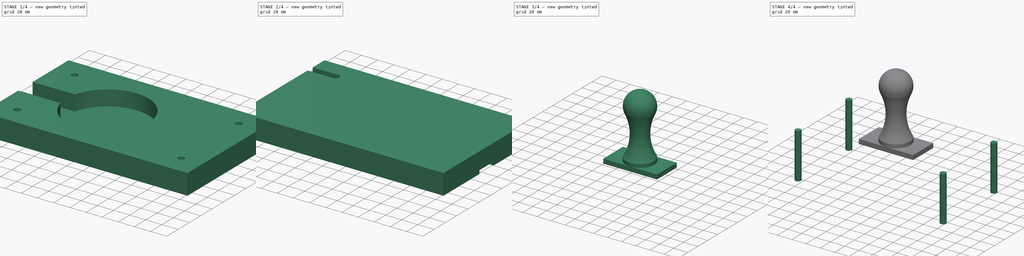
[diagram: build sequence overview — one tinted view per stage of 4, left to right]
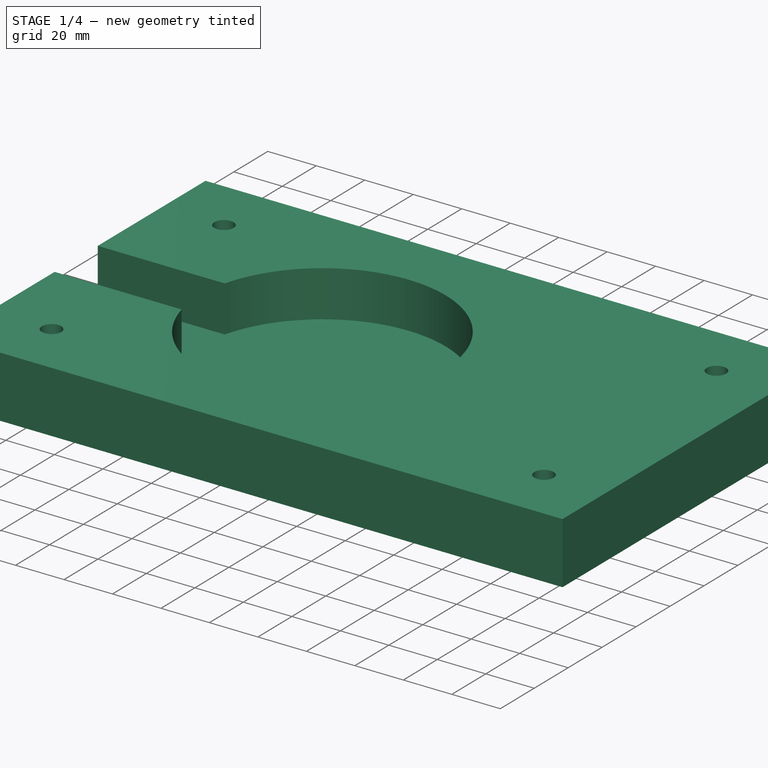
[diagram: stage 1 of 4 — iso view after this stage's code; geometry added in this stage tinted green]
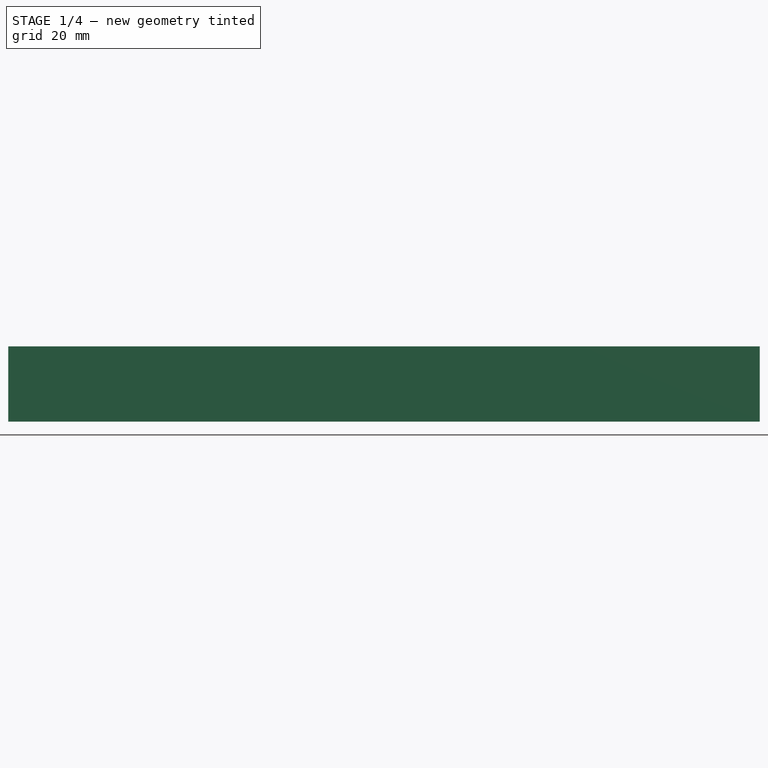
[diagram: stage 1 of 4 — front view after this stage's code; geometry added in this stage tinted green]
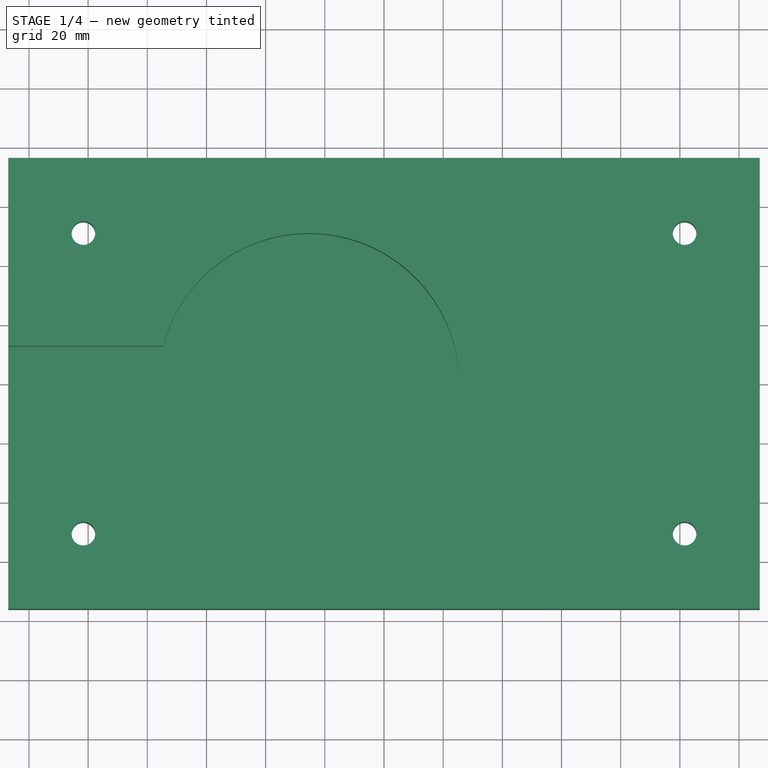
[diagram: stage 1 of 4 — top view after this stage's code; geometry added in this stage tinted green]
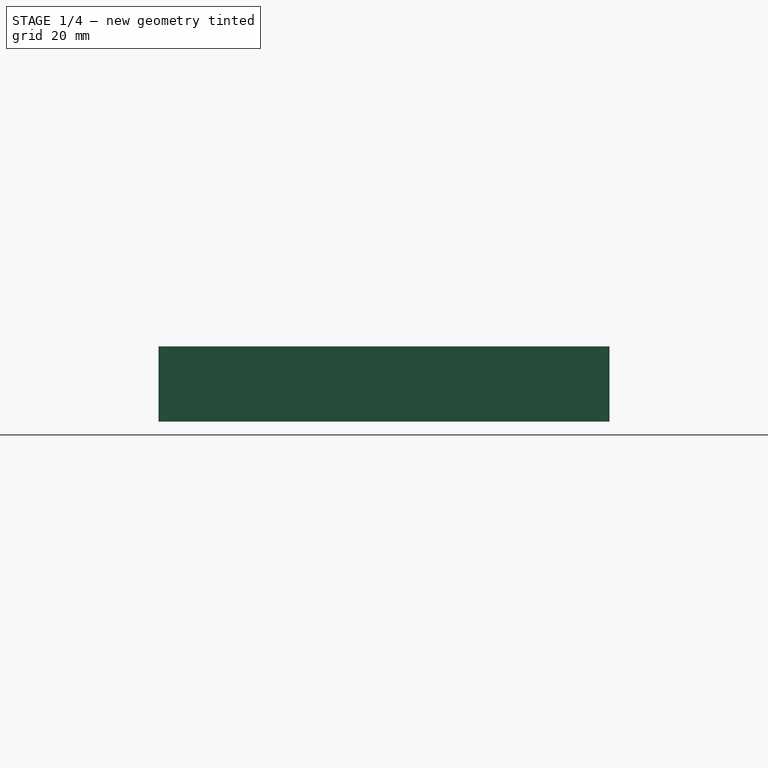
[diagram: stage 1 of 4 — right view after this stage's code; geometry added in this stage tinted green]
FCSTD DOCUMENT  (FreeCAD 0.17R13541 (Git))
Label: 贝尔的金属探测器 带图纸
License: All rights reserved
LicenseURL: http://en.wikipedia.org/wiki/All_rights_reserved
objects: TechDraw::DrawViewDimension×11, Sketcher::SketchObject×8, PartDesign::Pocket×4, Part::Cylinder×4, PartDesign::Mirrored×4, PartDesign::Pad×3, PartDesign::Body×3, TechDraw::DrawProjGroupItem×3, PartDesign::MultiTransform×2, PartDesign::ShapeBinder×2, PartDesign::Revolution×1, TechDraw::DrawSVGTemplate×1, TechDraw::DrawProjGroup×1, TechDraw::DrawViewPart×1, TechDraw::DrawPage×1
note: 39 computed .brp shape members not serialized (recipe doc carries the construction recipe); baked Part::Feature solids carry a one-line shape summary decoded from their .brp

FEATURE [Sketcher::SketchObject] Sketch
  MapMode = 5
  Support = -> [XY_Plane]
  sketch-geometry (4):
    g0: LineSegment StartX=127 StartY=76.2 StartZ=0 EndX=-127 EndY=76.2 EndZ=0
    g1: LineSegment StartX=-127 StartY=76.2 StartZ=0 EndX=-127 EndY=-76.2 EndZ=0
    g2: LineSegment StartX=-127 StartY=-76.2 StartZ=0 EndX=127 EndY=-76.2 EndZ=0
    g3: LineSegment StartX=127 StartY=-76.2 StartZ=0 EndX=127 EndY=76.2 EndZ=0
  constraints (11):
    c: Coincident(g0,g1)
    c: Coincident(g1,g2)
    c: Coincident(g2,g3)
    c: Coincident(g3,g0)
    c: Horizontal(g0)
    c: Horizontal(g2)
    c: Vertical(g1)
    c: Vertical(g3)
    c: DistanceX(g0,g0) = 254
    c: DistanceY(g2,g0) = 152.4
    c: Symmetric(g0,g1,g-1)
FEATURE [PartDesign::Pad] Pad  label="上基座"
  Length = 25.4
  Length2 = 100
  Profile = -> Sketch
  Type = 0
FEATURE [Sketcher::SketchObject] Sketch001
  MapMode = 5
  Placement = pos=(0,0,25.4) rot=(0,0,1;0rad)
  Support = -> [Pad]
  sketch-geometry (1):
    g0: Circle CenterX=-101.6 CenterY=50.8 CenterZ=0 NormalX=0 NormalY=0 NormalZ=1 AngleXU=0 Radius=4
  constraints (3):
    c: DistanceX(g0) = -101.6
    c: DistanceY(g0) = 50.8
    c: Radius(g0) = 4
FEATURE [PartDesign::Pocket] Pocket  label="销钉孔"
  BaseFeature = -> Pad
  Length = 5
  Length2 = 100
  Profile = -> Sketch001
  Type = 1
FEATURE [PartDesign::Mirrored] Mirrored
  MirrorPlane = -> YZ_Plane
FEATURE [PartDesign::Mirrored] Mirrored001
  MirrorPlane = -> XZ_Plane
FEATURE [PartDesign::MultiTransform] MultiTransform  label="两次镜像的销钉孔"
  BaseFeature = -> Pocket
  Originals = -> [Pocket]
  Transformations = -> [Mirrored,Mirrored001]
FEATURE [Sketcher::SketchObject] Sketch002
  ExternalGeometry = -> [MultiTransform]
  MapMode = 5
  Placement = pos=(0,0,25.4) rot=(0,0,1;0rad)
  Support = -> [MultiTransform]
  sketch-geometry (4):
    g0: LineSegment StartX=-127 StartY=-12.7 StartZ=0 EndX=-74.5869 EndY=-12.7 EndZ=0
    g1: LineSegment StartX=-74.5869 StartY=12.7 StartZ=0 EndX=-127 EndY=12.7 EndZ=0
    g2: LineSegment StartX=-127 StartY=12.7 StartZ=0 EndX=-127 EndY=-12.7 EndZ=0
    g3: ArcOfCircle CenterX=-25.4 CenterY=0 CenterZ=0 NormalX=0 NormalY=0 NormalZ=1 AngleXU=0 Radius=50.8 StartAngle=3.39427 EndAngle=9.1721
  constraints (13):
    c: Coincident(g1,g2)
    c: Coincident(g2,g0)
    c: Horizontal(g0)
    c: Horizontal(g1)
    c: Vertical(g2)
    c: PointOnObject(g0,g-3)
    c: PointOnObject(g3,g-1)  '凹坑中心在x轴上'
    c: Symmetric(g1,g0,g-1)  '沟槽中心对称'
    c: DistanceY(g0,g1) = 25.4  '沟槽宽度'
    c: Radius(g3) = 50.8  '凹坑半径'
    c: DistanceX(g3,g-1) = 25.4  '凹坑位置'
    c: Coincident(g3,g0)
    c: Coincident(g3,g1)
FEATURE [PartDesign::Pocket] Pocket001  label="深沟槽和凹坑"
  BaseFeature = -> MultiTransform
  Length = 19.05
  Length2 = 100
  Profile = -> Sketch002
  Type = 0
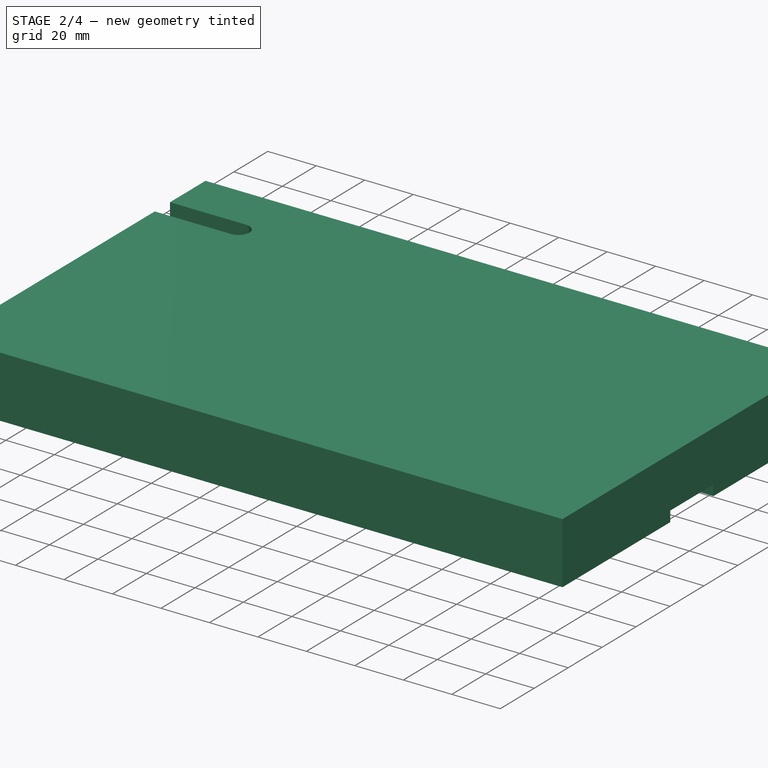
[diagram: stage 2 of 4 — iso view after this stage's code; geometry added in this stage tinted green]
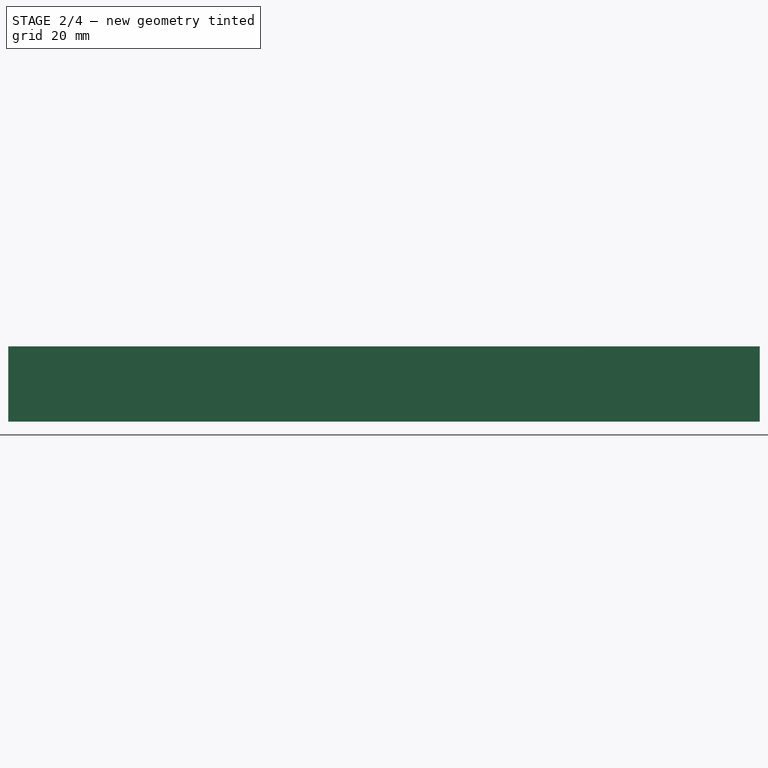
[diagram: stage 2 of 4 — front view after this stage's code; geometry added in this stage tinted green]
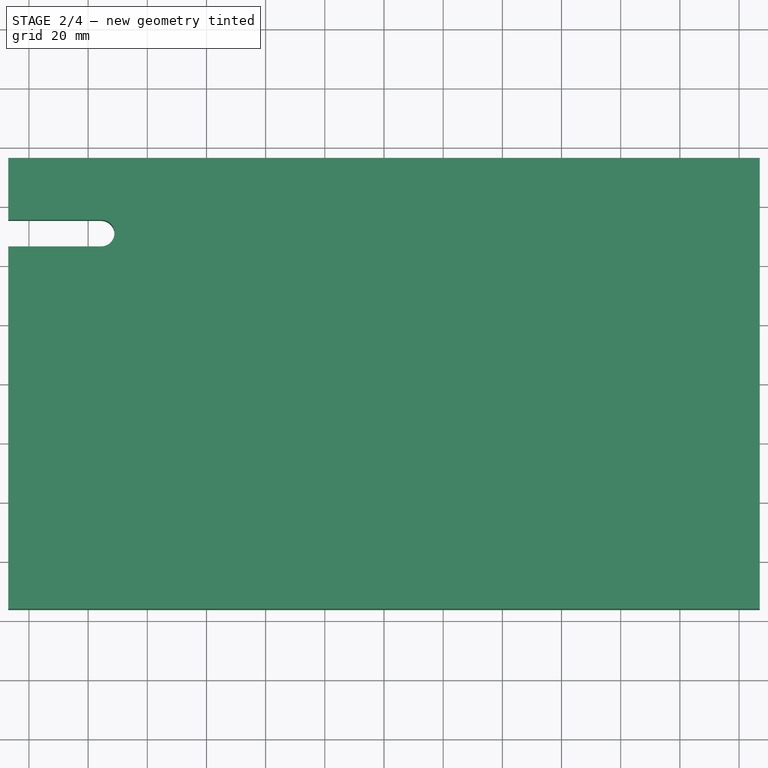
[diagram: stage 2 of 4 — top view after this stage's code; geometry added in this stage tinted green]
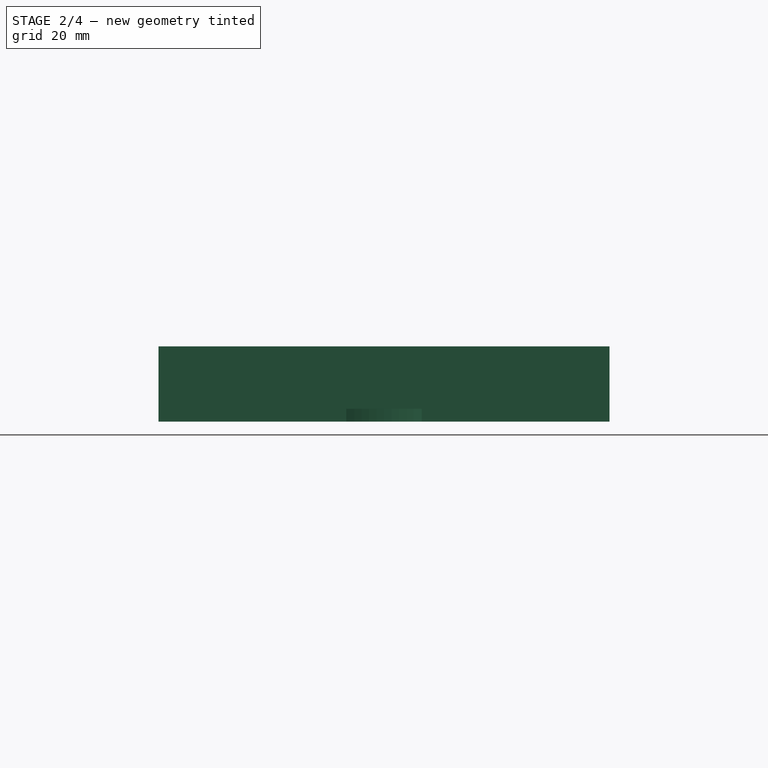
[diagram: stage 2 of 4 — right view after this stage's code; geometry added in this stage tinted green]
FEATURE [PartDesign::Body] Body  label="下底座"
  Group = -> [Sketch,Pad,Sketch001,Pocket,MultiTransform,Mirrored,Mirrored001,Sketch002,Pocket001]
  Origin = -> Origin
  Tip = -> Pocket001
FEATURE [PartDesign::ShapeBinder] ShapeBinder  label="引用的下底座的顶面"
  Support = -> [Pocket001]
FEATURE [Sketcher::SketchObject] Sketch003
  ExternalGeometry = -> [ShapeBinder]
  MapMode = 5
  Placement = pos=(0,0,25.4) rot=(0,0,1;0rad)
  Support = -> [ShapeBinder]
  sketch-geometry (4):
    g0: LineSegment StartX=-127 StartY=76.2 StartZ=0 EndX=127 EndY=76.2 EndZ=0
    g1: LineSegment StartX=127 StartY=76.2 StartZ=0 EndX=127 EndY=-76.2 EndZ=0
    g2: LineSegment StartX=127 StartY=-76.2 StartZ=0 EndX=-127 EndY=-76.2 EndZ=0
    g3: LineSegment StartX=-127 StartY=-76.2 StartZ=0 EndX=-127 EndY=76.2 EndZ=0
  constraints (10):
    c: Coincident(g0,g1)
    c: Coincident(g1,g2)
    c: Coincident(g2,g3)
    c: Coincident(g3,g0)
    c: Horizontal(g0)
    c: Horizontal(g2)
    c: Vertical(g1)
    c: Vertical(g3)
    c: Coincident(g0,g-3)
    c: Coincident(g1,g-4)
FEATURE [PartDesign::Pad] Pad001  label="下基座"
  Length = 25.4
  Length2 = 100
  Profile = -> Sketch003
  Type = 0
FEATURE [Sketcher::SketchObject] Sketch004
  ExternalGeometry = -> [ShapeBinder]
  MapMode = 5
  Placement = pos=(0,0,25.4) rot=(0,0,1;0rad)
  Support = -> [ShapeBinder]
  sketch-geometry (5):
    g0: LineSegment [constr] StartX=-101.6 StartY=50.8 StartZ=0 EndX=-95.6 EndY=50.8 EndZ=0
    g1: ArcOfCircle CenterX=-95.6 CenterY=50.8 CenterZ=0 NormalX=0 NormalY=0 NormalZ=1 AngleXU=0 Radius=4.5 StartAngle=4.71239 EndAngle=7.85398
    g2: LineSegment StartX=-95.6 StartY=55.3 StartZ=0 EndX=-127 EndY=55.3 EndZ=0
    g3: LineSegment StartX=-127 StartY=55.3 StartZ=0 EndX=-127 EndY=46.3 EndZ=0
    g4: LineSegment StartX=-127 StartY=46.3 StartZ=0 EndX=-95.6 EndY=46.3 EndZ=0
  constraints (13):
    c: Coincident(g0,g-3)
    c: Horizontal(g0)
    c: Coincident(g1,g0)
    c: PointOnObject(g2,g-4)
    c: Horizontal(g2)
    c: Coincident(g3,g2)
    c: Coincident(g4,g3)
    c: Horizontal(g4)
    c: Tangent(g4,g1) = -1.5708
    c: Tangent(g2,g1) = -1.5708
    c: DistanceX(g0,g0) = 6
    c: Radius(g1) = 4.5
    c: Vertical(g3)
FEATURE [PartDesign::Pocket] Pocket002  label="滑槽"
  BaseFeature = -> Pad001
  Length = 5
  Length2 = 100
  Profile = -> Sketch004
  Reversed = true
  Type = 1
FEATURE [Sketcher::SketchObject] Sketch005
  ExternalGeometry = -> [ShapeBinder]
  MapMode = 5
  Placement = pos=(0,0,25.4) rot=(0,0,1;0rad)
  Support = -> [ShapeBinder]
  sketch-geometry (5):
    g0: LineSegment [constr] StartX=-74.5869 StartY=12.7 StartZ=0 EndX=-74.5869 EndY=-12.7 EndZ=0
    g1: LineSegment StartX=127 StartY=-12.7 StartZ=0 EndX=74.5869 EndY=-12.7 EndZ=0
    g2: LineSegment StartX=74.5869 StartY=12.7 StartZ=0 EndX=127 EndY=12.7 EndZ=0
    g3: LineSegment StartX=127 StartY=12.7 StartZ=0 EndX=127 EndY=-12.7 EndZ=0
    g4: ArcOfCircle CenterX=25.4 CenterY=0 CenterZ=0 NormalX=0 NormalY=0 NormalZ=1 AngleXU=0 Radius=50.8 StartAngle=0.25268 EndAngle=6.03051
  constraints (15):
    c: Coincident(g0,g-3)
    c: Coincident(g0,g-3)
    c: Coincident(g2,g3)
    c: Coincident(g3,g1)
    c: Horizontal(g1)
    c: Horizontal(g2)
    c: Vertical(g3)
    c: PointOnObject(g1,g-4)
    c: PointOnObject(g4,g-1)
    c: Symmetric(g2,g1,g-1)  '沟槽沿x轴对称'
    c: Equal(g3,g0)  '沟槽宽度相等'
    c: Equal(g4,g-3)  '两圆大小相等'
    c: Coincident(g4,g2)
    c: Coincident(g4,g1)
    c: Symmetric(g4,g-3,g-1)  '两圆镜像'
FEATURE [PartDesign::Pocket] Pocket003  label="浅沟槽和凹坑"
  BaseFeature = -> Pocket002
  Length = 4.318
  Length2 = 100
  Profile = -> Sketch005
  Reversed = true
  Type = 0
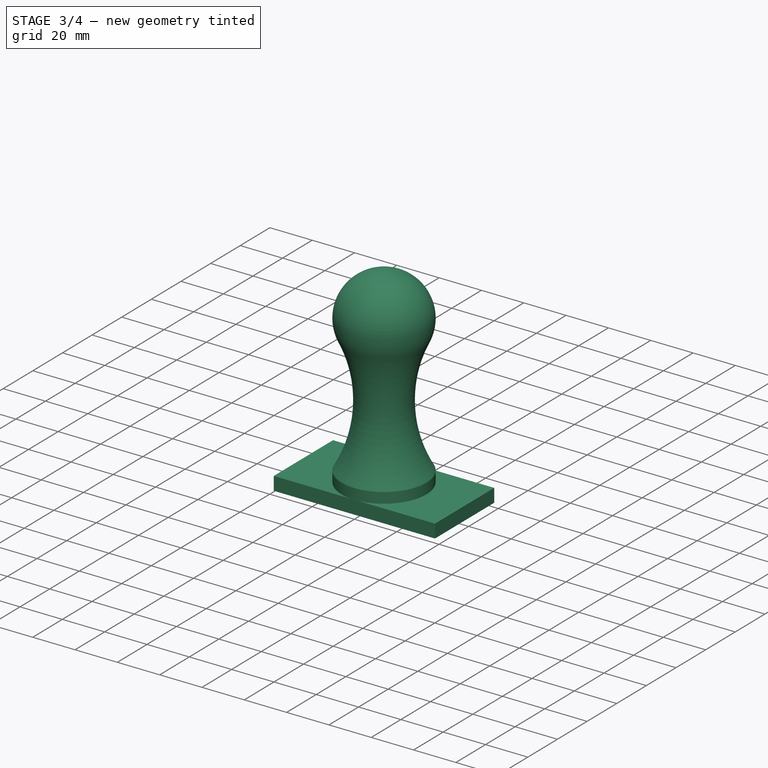
[diagram: stage 3 of 4 — iso view after this stage's code; geometry added in this stage tinted green]
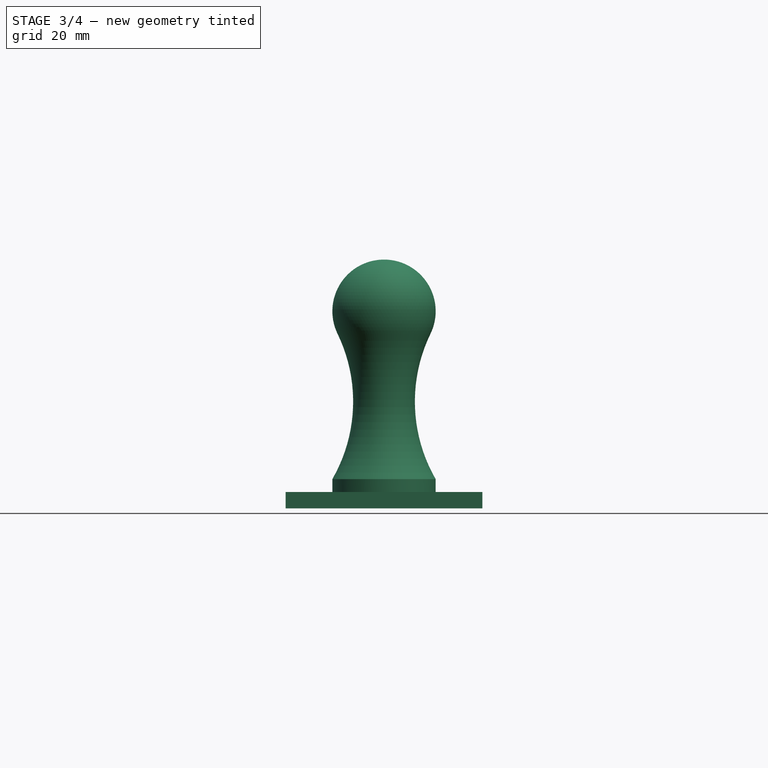
[diagram: stage 3 of 4 — front view after this stage's code; geometry added in this stage tinted green]
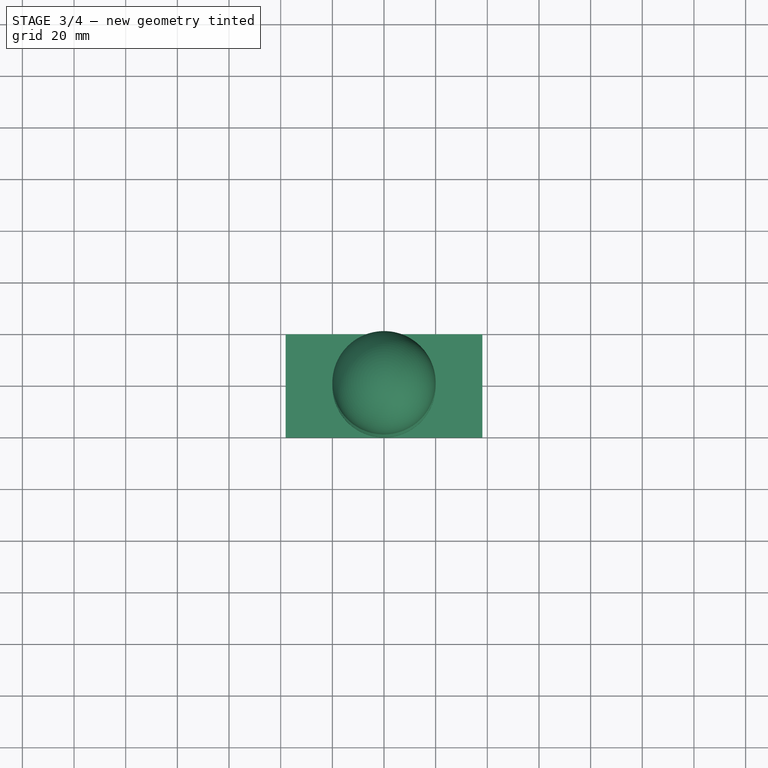
[diagram: stage 3 of 4 — top view after this stage's code; geometry added in this stage tinted green]
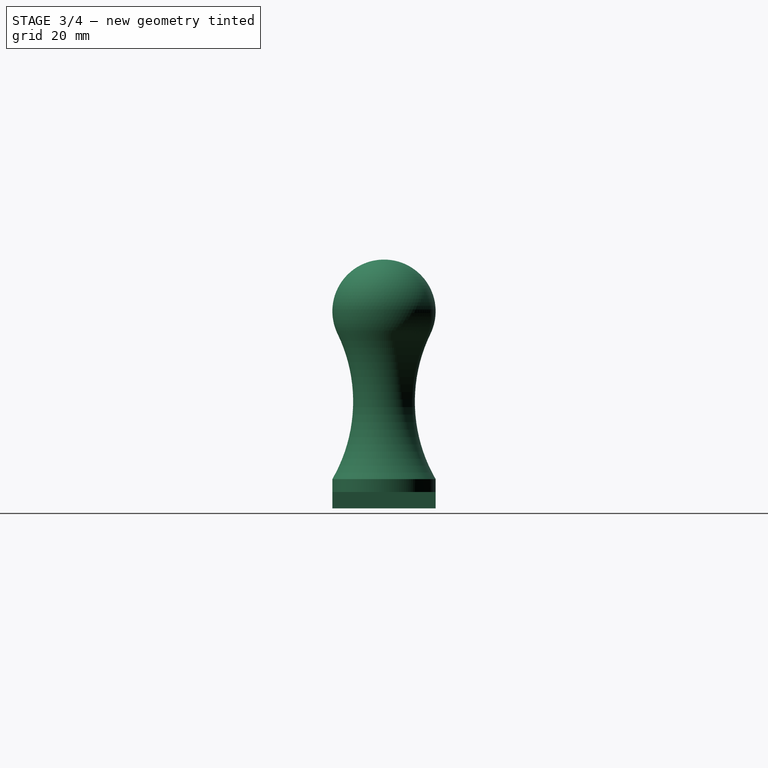
[diagram: stage 3 of 4 — right view after this stage's code; geometry added in this stage tinted green]
FEATURE [PartDesign::Mirrored] Mirrored002
  MirrorPlane = -> YZ_Plane001
FEATURE [PartDesign::Mirrored] Mirrored003
  MirrorPlane = -> XZ_Plane001
FEATURE [PartDesign::MultiTransform] MultiTransform001  label="两次镜像的滑槽"
  BaseFeature = -> Pocket003
  Originals = -> [Pocket002]
  Transformations = -> [Mirrored002,Mirrored003]
FEATURE [PartDesign::Body] Body001  label="上部块"
  Group = -> [ShapeBinder,Sketch003,Pad001,Sketch004,Pocket002,Sketch005,Pocket003,MultiTransform001,Mirrored002,Mirrored003]
  Origin = -> Origin001
  Tip = -> MultiTransform001
FEATURE [PartDesign::ShapeBinder] ShapeBinder001  label="引用的上部块的顶面"
  Support = -> [MultiTransform001]
FEATURE [Sketcher::SketchObject] Sketch006
  MapMode = 5
  Placement = pos=(0,0,50.8) rot=(0,0,1;0rad)
  Support = -> [ShapeBinder001]
  sketch-geometry (4):
    g0: LineSegment StartX=38.1 StartY=20 StartZ=0 EndX=-38.1 EndY=20 EndZ=0
    g1: LineSegment StartX=-38.1 StartY=20 StartZ=0 EndX=-38.1 EndY=-20 EndZ=0
    g2: LineSegment StartX=-38.1 StartY=-20 StartZ=0 EndX=38.1 EndY=-20 EndZ=0
    g3: LineSegment StartX=38.1 StartY=-20 StartZ=0 EndX=38.1 EndY=20 EndZ=0
  constraints (11):
    c: Coincident(g0,g1)
    c: Coincident(g1,g2)
    c: Coincident(g2,g3)
    c: Coincident(g3,g0)
    c: Horizontal(g0)
    c: Horizontal(g2)
    c: Vertical(g1)
    c: Vertical(g3)
    c: Symmetric(g0,g1,g-1)
    c: DistanceX(g0,g0) = 76.2
    c: DistanceY(g2,g0) = 40
FEATURE [PartDesign::Pad] Pad002  label="手柄座"
  Length = 6.35
  Length2 = 100
  Profile = -> Sketch006
  Type = 0
FEATURE [Sketcher::SketchObject] Sketch007
  ExternalGeometry = -> [Pad002]
  MapMode = 5
  Placement = pos=(0,0,0) rot=(1,0,0;1.5708rad)
  Support = -> [XZ_Plane002]
  sketch-geometry (5):
    g0: LineSegment StartX=0 StartY=57.15 StartZ=0 EndX=20 EndY=57.15 EndZ=0
    g1: LineSegment StartX=20 StartY=57.15 StartZ=0 EndX=20 EndY=62.15 EndZ=0
    g2: ArcOfCircle CenterX=71.9485 CenterY=92.1726 CenterZ=0 NormalX=0 NormalY=0 NormalZ=1 AngleXU=0 Radius=60 StartAngle=2.68909 EndAngle=3.66563
    g3: ArcOfCircle CenterX=0 CenterY=127.15 CenterZ=0 NormalX=0 NormalY=0 NormalZ=1 AngleXU=0 Radius=20 StartAngle=5.83068 EndAngle=7.85398
    g4: LineSegment StartX=0 StartY=147.15 StartZ=0 EndX=0 EndY=57.15 EndZ=0
  constraints (16):
    c: PointOnObject(g0,g-3)
    c: PointOnObject(g0,g-3)
    c: Coincident(g0,g1)
    c: Vertical(g1)
    c: Coincident(g2,g1)
    c: Coincident(g4,g3)
    c: Coincident(g4,g0)
    c: Vertical(g4)
    c: Perpendicular(g3,g4)
    c: PointOnObject(g4,g-2)
    c: Tangent(g3,g2) = 1.5708
    c: DistanceX(g0,g0) = 20
    c: DistanceY(g0,g1) = 5
    c: Radius(g2) = 60
    c: DistanceY(g0,g3) = 90
    c: DistanceY(g0,g3) = 70
FEATURE [PartDesign::Revolution] Revolution  label="把手"
  Angle = 360
  Axis = (0,0,1)
  Base = (0,0,0)
  BaseFeature = -> Pad002
  Profile = -> Sketch007
  ReferenceAxis = -> Sketch007 [V_Axis]
  Reversed = true
FEATURE [PartDesign::Body] Body002  label="手柄"
  Group = -> [ShapeBinder001,Sketch006,Pad002,Sketch007,Revolution]
  Origin = -> Origin002
  Tip = -> Revolution
FEATURE [TechDraw::DrawSVGTemplate] Template
  EditableTexts = AUTHOR_NAME=John Qu; DN=B001-01; DRAWING_TITLE=Bell's metal detector; FC-DATE=04/12/2018; FC-REV=None; FC-SC=1:2; FC-SH=1 / 4; FC-SI=A3; FreeCAD_DRAWING=FreeCAD DRAWING; PN=B001
  Height = 297
  Orientation = 1
  Width = 420
FEATURE [TechDraw::DrawProjGroupItem] ProjItem  label="Front"
  CoarseView = false
  Direction = (0,-1,0)
  Focus = 100
  HardHidden = false
  IsoCount = 0
  IsoHidden = false
  IsoVisible = false
  LockPosition = false
  Perspective = false
  Rotation = 0
  RotationVector = (1,0,0)
  ScaleType = 0
  SeamHidden = false
  SeamVisible = false
  SmoothHidden = false
  SmoothVisible = false
  Source = -> [Body]
  Type = 0
  X = 63.5
  Y = 77.35
FEATURE [TechDraw::DrawProjGroupItem] ProjItem001  label="Top"
  CoarseView = false
  Direction = (0,0,1)
  Focus = 100
  HardHidden = false
  IsoCount = 0
  IsoHidden = false
  IsoVisible = false
  LockPosition = false
  Perspective = false
  Rotation = 0
  RotationVector = (1,0,0)
  ScaleType = 0
  SeamHidden = false
  SeamVisible = false
  SmoothHidden = false
  SmoothVisible = false
  Source = -> [Body]
  Type = 4
  X = 0
  Y = -91.2
FEATURE [TechDraw::DrawProjGroupItem] ProjItem003  label="Left"
  CoarseView = false
  Direction = (-1,0,0)
  Focus = 100
  HardHidden = false
  IsoCount = 0
  IsoHidden = false
  IsoVisible = false
  LockPosition = false
  Perspective = false
  Rotation = 0
  RotationVector = (0,1,0)
  ScaleType = 0
  SeamHidden = false
  SeamVisible = false
  SmoothHidden = false
  SmoothVisible = false
  Source = -> [Body]
  Type = 1
  X = 142
  Y = 0
FEATURE [TechDraw::DrawProjGroup] ProjGroup
  Anchor = -> ProjItem
  AutoDistribute = true
  CubeDirs = (1) [(0,0,0)]
  CubeRotations = (1) [(0,0,0)]
  LockPosition = false
  ProjectionType = 1
  Rotation = 0
  Scale = 0.5
  ScaleType = 2
  Source = -> [Body]
  Views = -> [ProjItem,ProjItem001,ProjItem003]
  X = 107.989
  Y = 227.79
  spacingX = 15
  spacingY = 15
FEATURE [TechDraw::DrawViewDimension] Dimension
  FormatSpec = %.2f
  LockPosition = false
  MeasureType = 1
  References2D = -> [ProjItem001]
  Rotation = 0
  ScaleType = 0
  Type = 1
  X = 0
  Y = -63.1989
FEATURE [TechDraw::DrawViewDimension] Dimension001
  FormatSpec = %.2f
  LockPosition = false
  MeasureType = 1
  References2D = -> [ProjItem001]
  Rotation = 0
  ScaleType = 0
  Type = 2
  X = 77.6024
  Y = 3.52738
FEATURE [TechDraw::DrawViewDimension] Dimension002
  FormatSpec = %.2f
  LockPosition = false
  MeasureType = 1
  References2D = -> [ProjItem001]
  Rotation = 0
  ScaleType = 0
  Type = 2
  X = -75.8387
  Y = 0.293949
FEATURE [TechDraw::DrawViewDimension] Dimension003
  FormatSpec = %.2f
  LockPosition = false
  MeasureType = 1
  References2D = -> [ProjItem001]
  Rotation = 0
  ScaleType = 0
  Type = 2
  X = -84.9511
  Y = 0
FEATURE [TechDraw::DrawViewDimension] Dimension004
  FormatSpec = %.2f
  LockPosition = false
  MeasureType = 1
  References2D = -> [ProjItem001]
  Rotation = 0
  ScaleType = 0
  Type = 1
  X = -56.4381
  Y = 55.5563
FEATURE [TechDraw::DrawViewDimension] Dimension005
  FormatSpec = %.2f
  LockPosition = false
  MeasureType = 1
  References2D = -> [ProjItem001]
  Rotation = 0
  ScaleType = 0
  Type = 1
  X = -2.64554
  Y = 55.2623
FEATURE [TechDraw::DrawViewDimension] Dimension006
  FormatSpec = %.2f
  LockPosition = false
  MeasureType = 1
  References2D = -> [ProjItem001]
  Rotation = 0
  ScaleType = 0
  Type = 1
  X = -37.6254
  Y = -53.7926
FEATURE [TechDraw::DrawViewDimension] Dimension007
  FormatSpec = %.2f
  LockPosition = false
  MeasureType = 1
  References2D = -> [ProjItem001]
  Rotation = 0
  ScaleType = 0
  Type = 5
  X = 36.4496
  Y = -15.5793
FEATURE [TechDraw::DrawViewDimension] Dimension008
  FormatSpec = 4-%.0f H7
  LockPosition = false
  MeasureType = 1
  References2D = -> [ProjItem001]
  Rotation = 0
  ScaleType = 0
  Type = 5
  X = 83.1875
  Y = 51.1471
FEATURE [TechDraw::DrawViewDimension] Dimension009
  FormatSpec = %.2f
  LockPosition = false
  MeasureType = 1
  References2D = -> [ProjItem003]
  Rotation = 0
  ScaleType = 0
  Type = 2
  X = -60.8474
  Y = 0.293949
FEATURE [TechDraw::DrawViewDimension] Dimension010
  FormatSpec = %.2f
  LockPosition = false
  MeasureType = 1
  References2D = -> [ProjItem003]
  Rotation = 0
  ScaleType = 0
  Type = 2
  X = -49.0894
  Y = 17.9309
FEATURE [TechDraw::DrawViewPart] View
  CoarseView = false
  Direction = (1,1,1)
  Focus = 100
  HardHidden = false
  IsoCount = 0
  IsoHidden = false
  IsoVisible = false
  LockPosition = false
  Perspective = false
  Rotation = 0
  Scale = 0.5
  ScaleType = 0
  SeamHidden = false
  SeamVisible = false
  SmoothHidden = false
  SmoothVisible = false
  Source = -> [Body]
  X = 301.269
  Y = 148.191
FEATURE [TechDraw::DrawPage] Page
  KeepUpdated = true
  ProjectionType = 1
  Template = -> Template
  Views = -> [ProjGroup,Dimension,Dimension001,Dimension002,Dimension003,Dimension004,Dimension005,Dimension006,Dimension007,Dimension008,Dimension009,Dimension010,View]
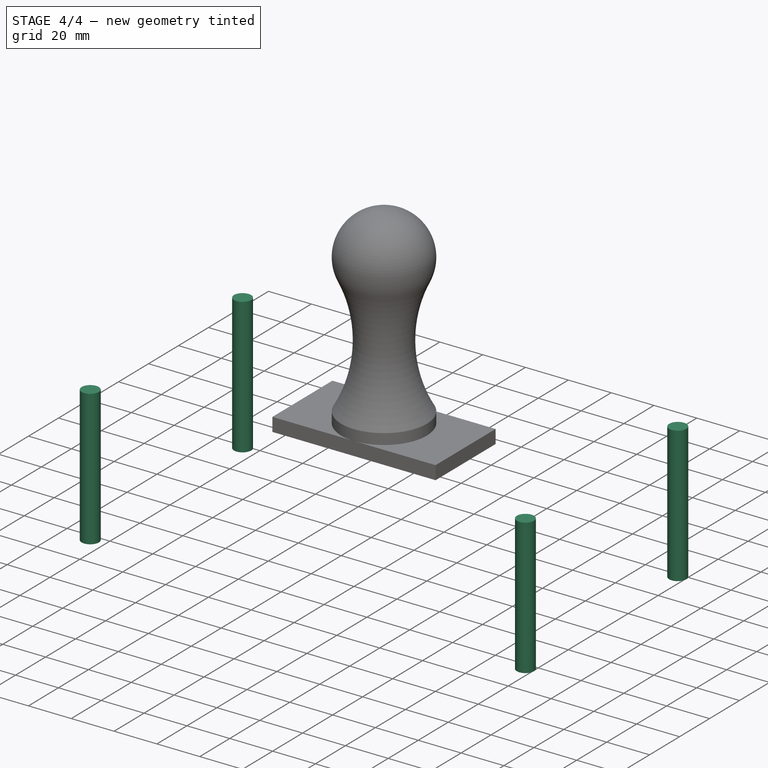
[diagram: stage 4 of 4 — iso view after this stage's code; geometry added in this stage tinted green]
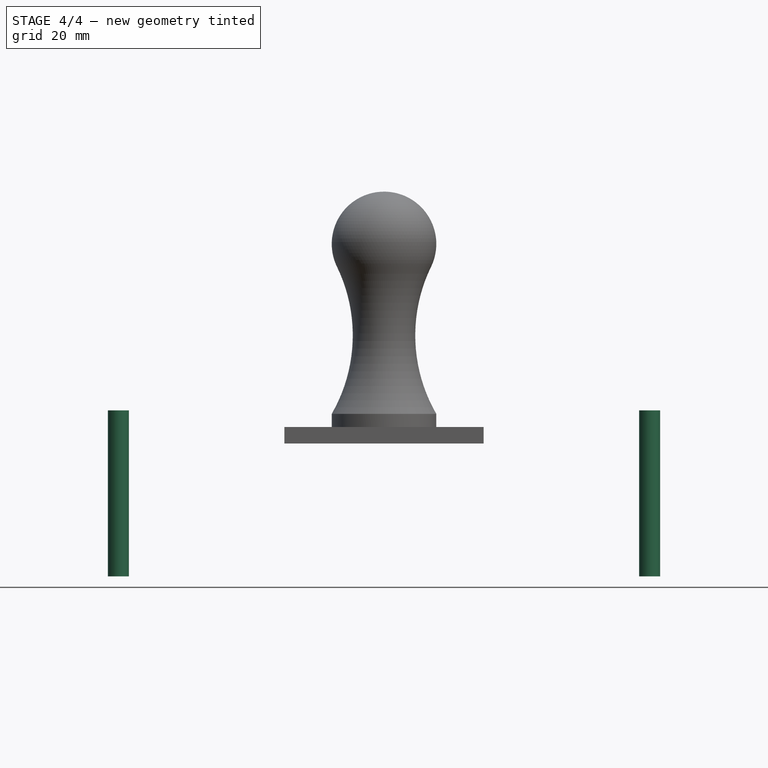
[diagram: stage 4 of 4 — front view after this stage's code; geometry added in this stage tinted green]
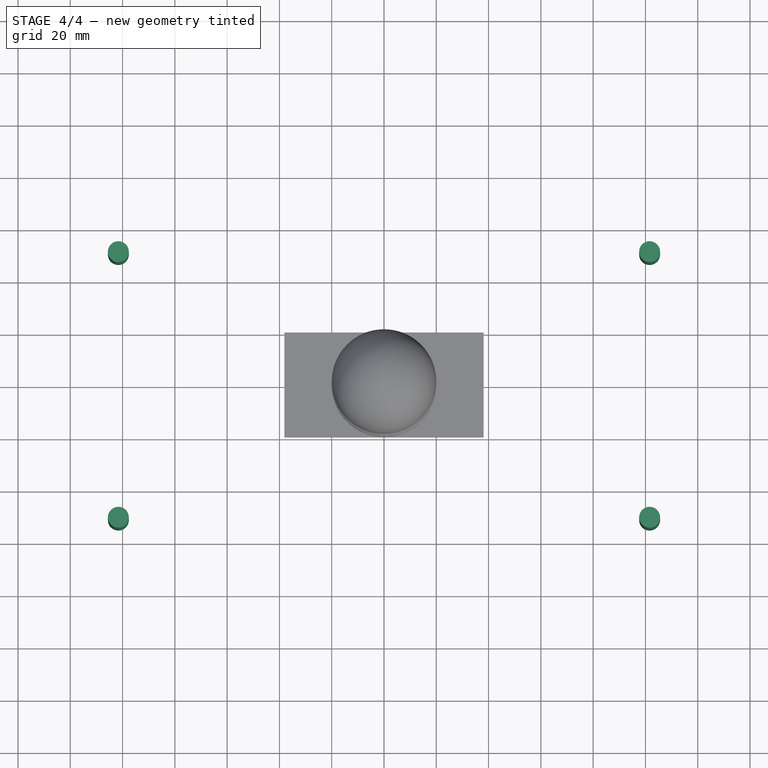
[diagram: stage 4 of 4 — top view after this stage's code; geometry added in this stage tinted green]
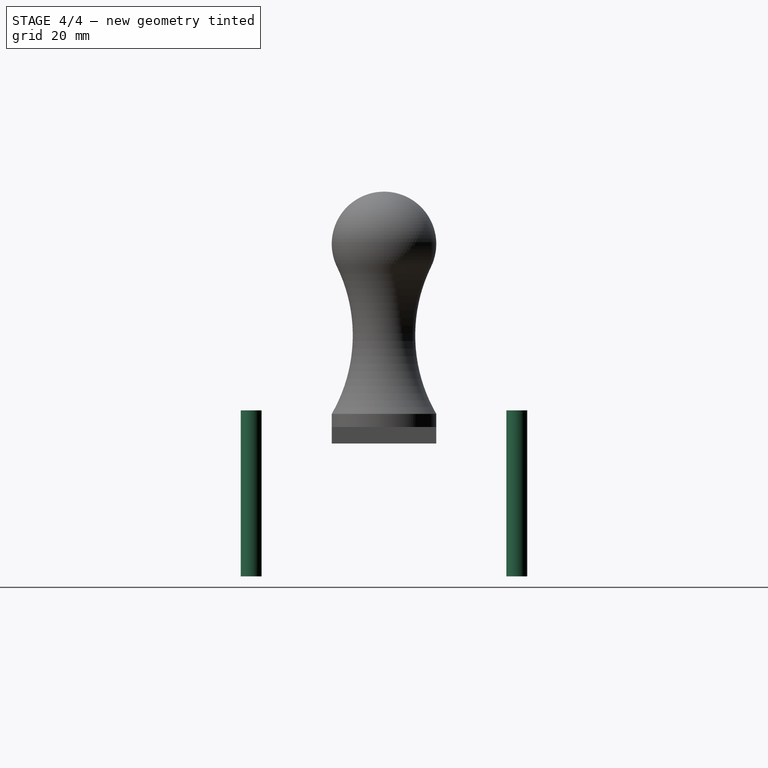
[diagram: stage 4 of 4 — right view after this stage's code; geometry added in this stage tinted green]
FEATURE [Part::Cylinder] Cylinder  label="销钉1"
  Angle = 360
  AttacherType = Attacher::AttachEngine3D
  Height = 63.5
  Placement = pos=(-101.6,50.8,0) rot=(0,0,1;0rad)
  Radius = 4
FEATURE [Part::Cylinder] Cylinder001  label="销钉2"
  Angle = 360
  AttacherType = Attacher::AttachEngine3D
  Height = 63.5
  Placement = pos=(101.6,50.8,0) rot=(0,0,1;0rad)
  Radius = 4
FEATURE [Part::Cylinder] Cylinder002  label="销钉3"
  Angle = 360
  AttacherType = Attacher::AttachEngine3D
  Height = 63.5
  Placement = pos=(-101.6,-50.8,0) rot=(0,0,1;0rad)
  Radius = 4
FEATURE [Part::Cylinder] Cylinder003  label="销钉4"
  Angle = 360
  AttacherType = Attacher::AttachEngine3D
  Height = 63.5
  Placement = pos=(101.6,-50.8,0) rot=(0,0,1;0rad)
  Radius = 4
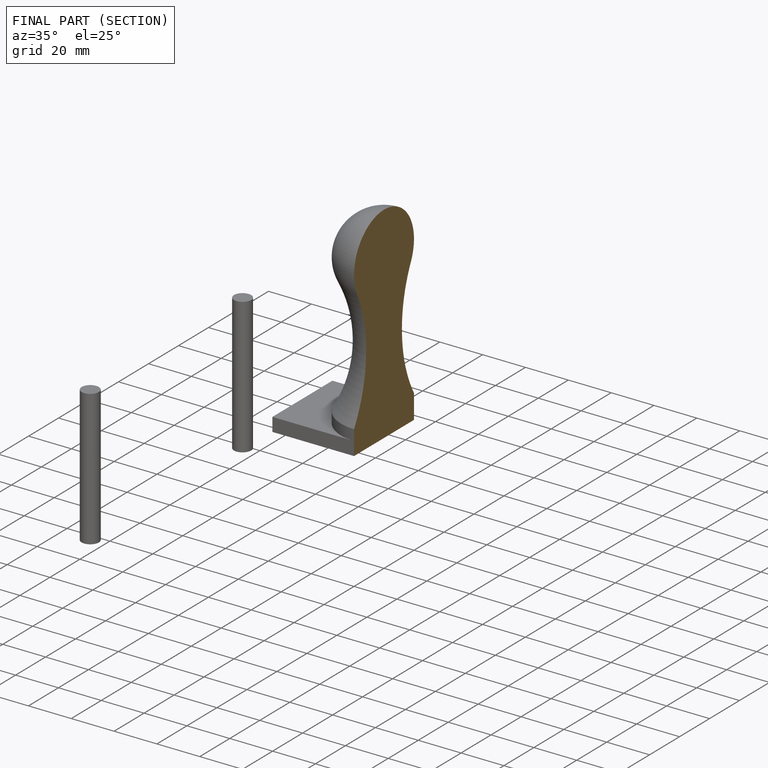
[diagram: finished part — half-section view (interior)]
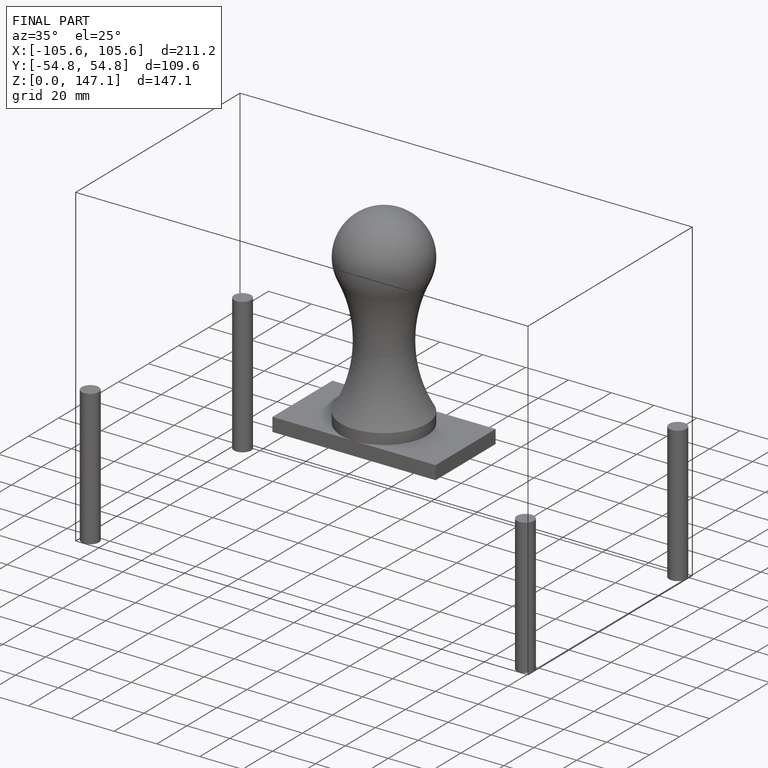
[diagram: finished part — iso view with bounding-box wireframe]
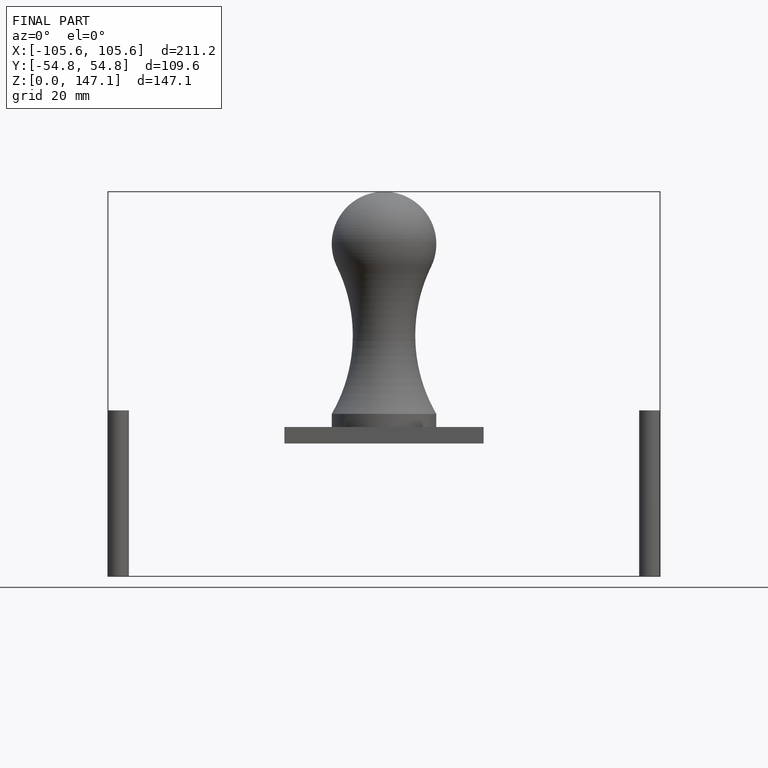
[diagram: finished part — front view with bounding-box wireframe]
